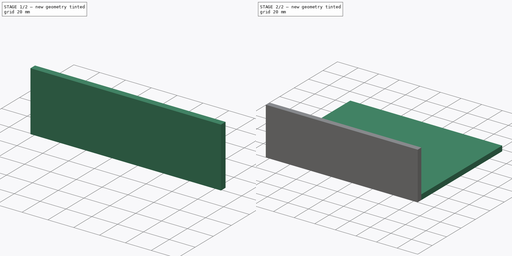
[diagram: build sequence overview — one tinted view per stage of 2, left to right]
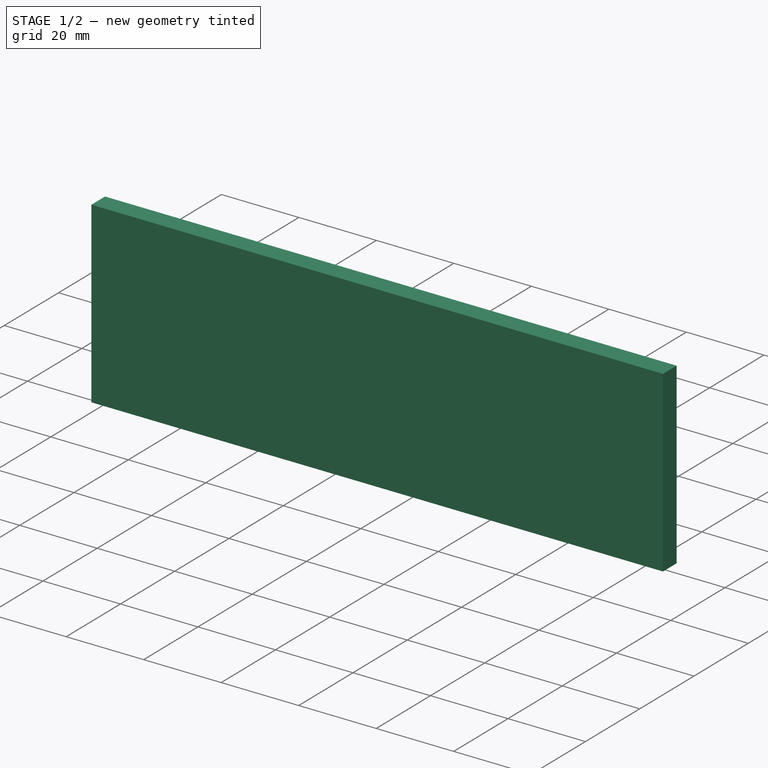
[diagram: stage 1 of 2 — iso view after this stage's code; geometry added in this stage tinted green]
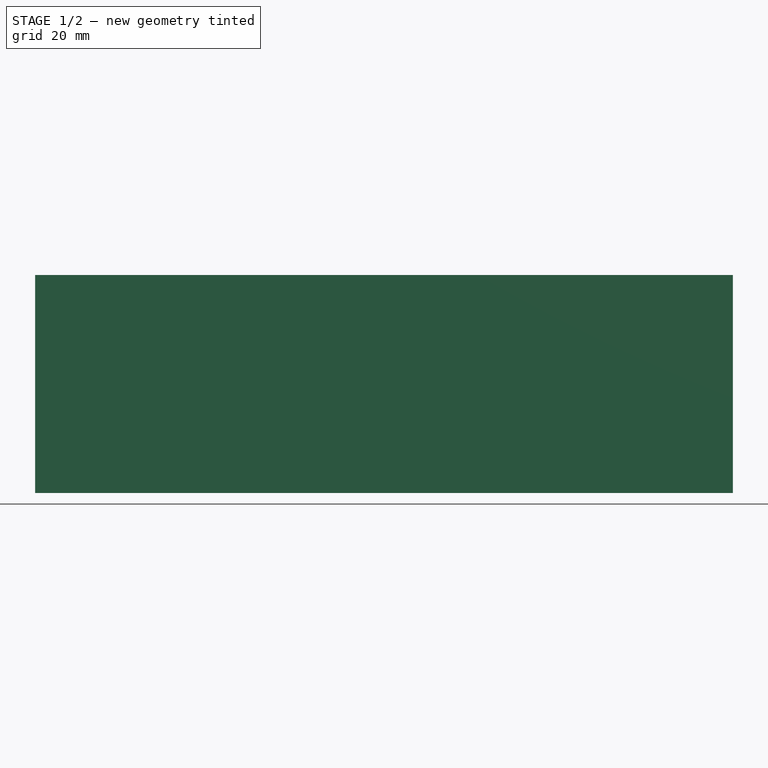
[diagram: stage 1 of 2 — front view after this stage's code; geometry added in this stage tinted green]
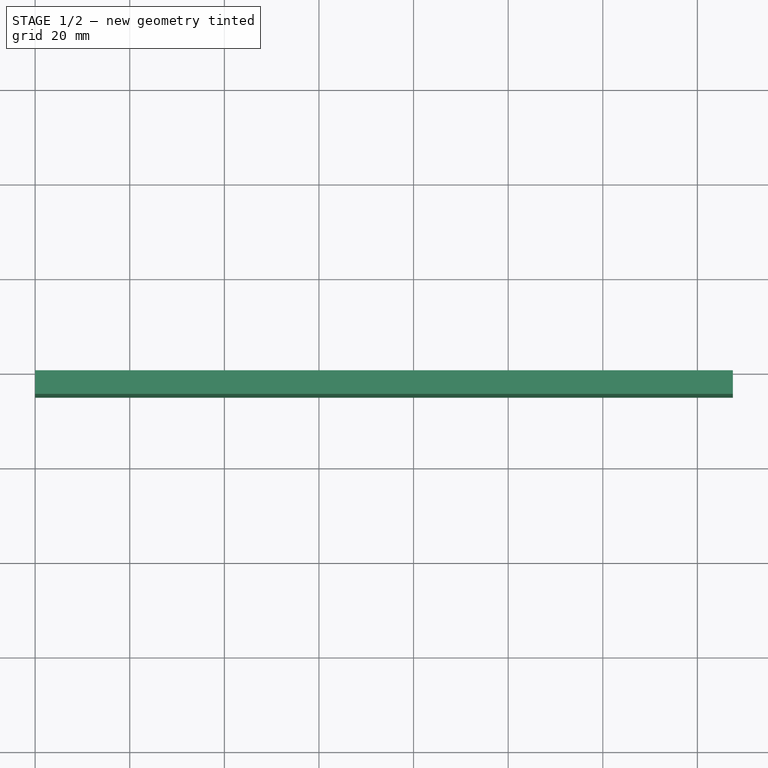
[diagram: stage 1 of 2 — top view after this stage's code; geometry added in this stage tinted green]
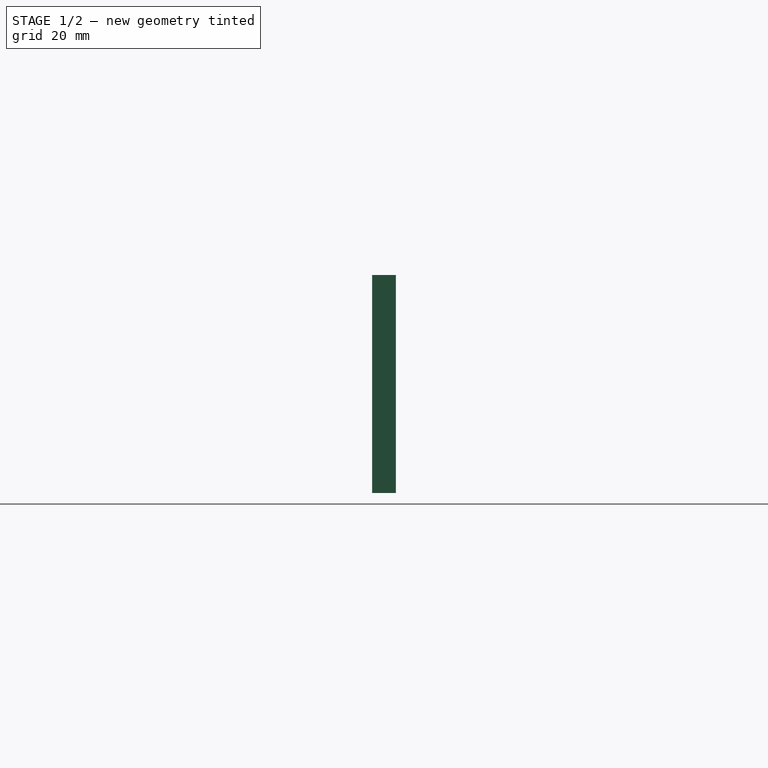
[diagram: stage 1 of 2 — right view after this stage's code; geometry added in this stage tinted green]
FCSTD DOCUMENT  (FreeCAD 0.19R)
Label: drive_caddy_1
License: All rights reserved
LicenseURL: http://en.wikipedia.org/wiki/All_rights_reserved
objects: Sketcher::SketchObject×2, PartDesign::Pad×2, PartDesign::Body×2, Spreadsheet::Sheet×1
note: 8 computed .brp shape members not serialized (recipe doc carries the construction recipe); baked Part::Feature solids carry a one-line shape summary decoded from their .brp

FEATURE [PartDesign::Body] Body  label="base_plate"
  Group = -> [Sketch,Pad]
  Origin = -> Origin
  Tip = -> Pad
FEATURE [Sketcher::SketchObject] Sketch001  label="side_plate_footprint"
  FullyConstrained = true
  MapMode = 5
  Support = -> [XY_Plane001]
  expr: Constraints[9] = Spreadsheet.side_plate_x
  expr: Constraints[10] = Spreadsheet.side_plate_y
  sketch-geometry (4):
    g0: LineSegment StartX=0 StartY=0 StartZ=0 EndX=147.5 EndY=0 EndZ=0
    g1: LineSegment StartX=147.5 StartY=0 StartZ=0 EndX=147.5 EndY=-5 EndZ=0
    g2: LineSegment StartX=147.5 StartY=-5 StartZ=0 EndX=0 EndY=-5 EndZ=0
    g3: LineSegment StartX=0 StartY=-5 StartZ=0 EndX=0 EndY=0 EndZ=0
  constraints (11):
    c: Coincident(g0,g1)
    c: Coincident(g1,g2)
    c: Coincident(g2,g3)
    c: Coincident(g3,g0)
    c: Horizontal(g0)
    c: Horizontal(g2)
    c: Vertical(g1)
    c: Vertical(g3)
    c: Coincident(g0,g-1)
    c: DistanceX(g2,g2) = 147.5
    c: DistanceY(g3,g3) = 5
FEATURE [PartDesign::Pad] Pad001  label="side_panel_pad1"
  Direction = (1,1,1)
  Length = 46.1
  Length2 = 100
  Profile = -> Sketch001
  Type = 0
  expr: Length = Spreadsheet.side_plate_z
FEATURE [PartDesign::Body] Body001  label="side_plate1"
  Group = -> [Sketch001,Pad001]
  Origin = -> Origin001
  Tip = -> Pad001
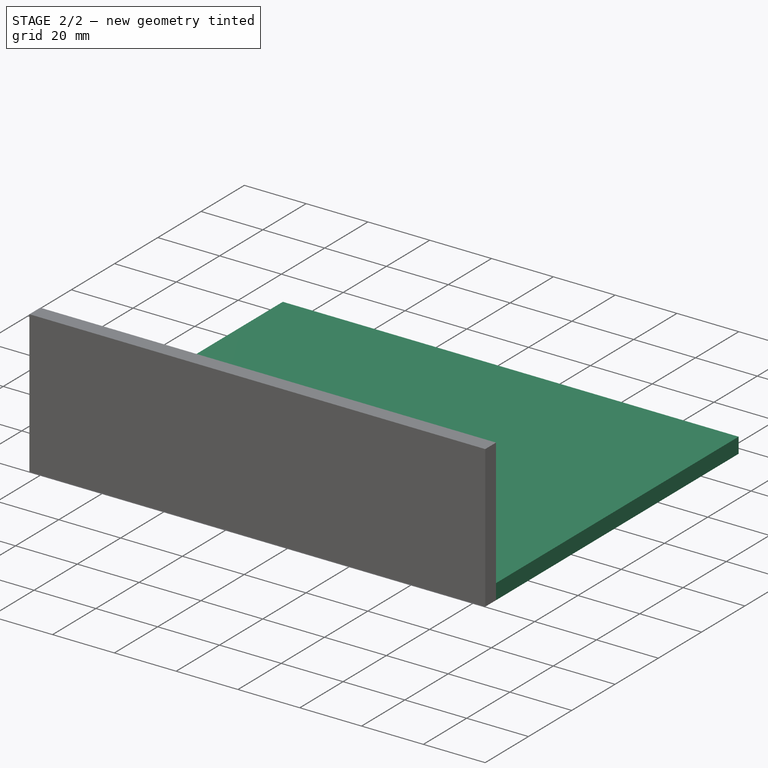
[diagram: stage 2 of 2 — iso view after this stage's code; geometry added in this stage tinted green]
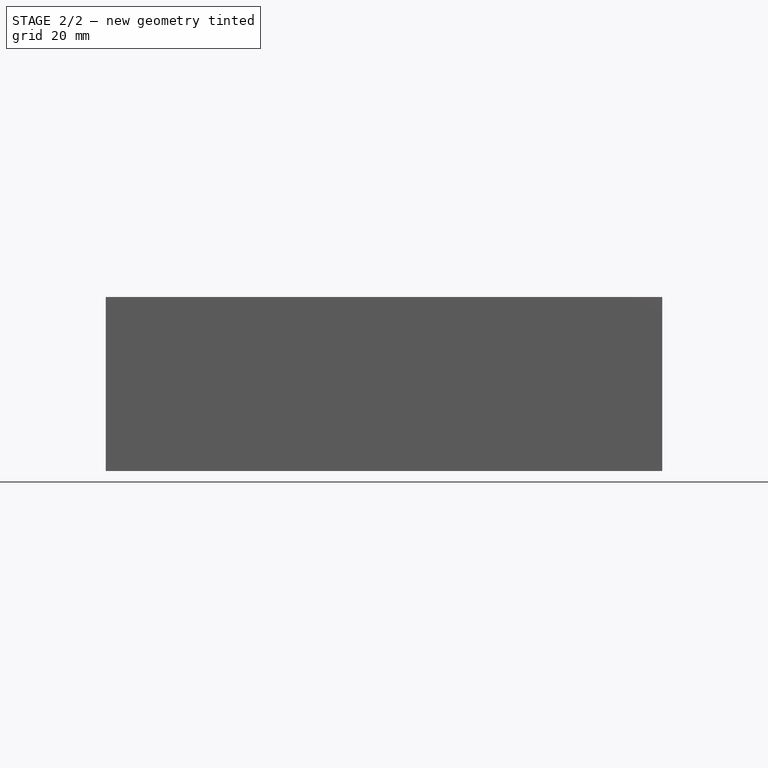
[diagram: stage 2 of 2 — front view after this stage's code; geometry added in this stage tinted green]
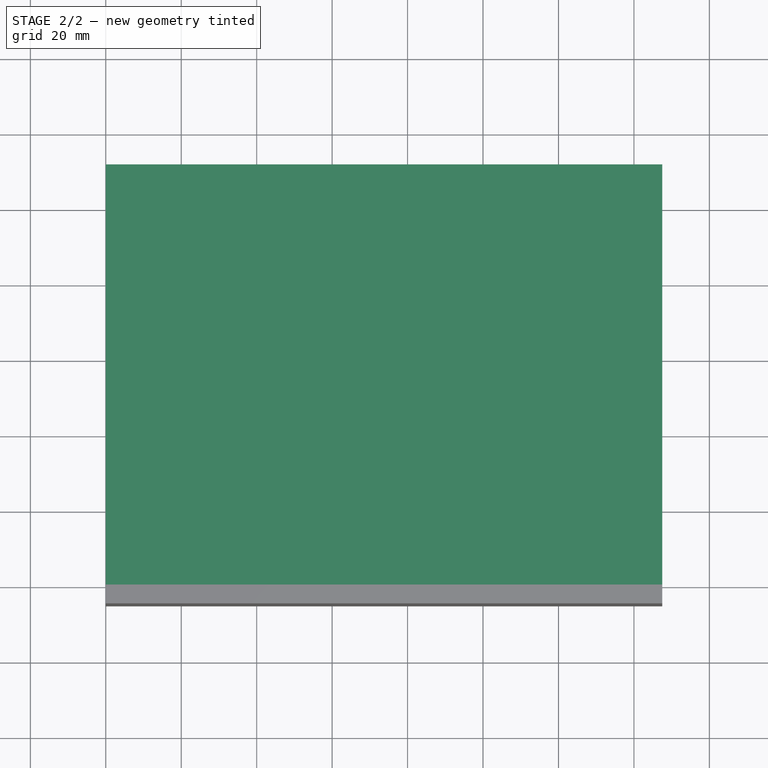
[diagram: stage 2 of 2 — top view after this stage's code; geometry added in this stage tinted green]
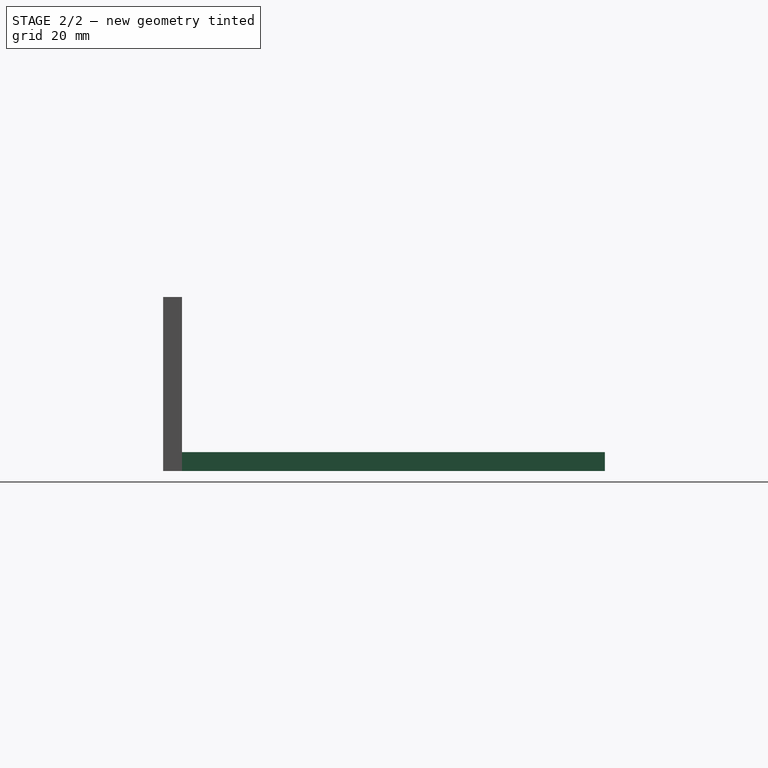
[diagram: stage 2 of 2 — right view after this stage's code; geometry added in this stage tinted green]
FEATURE [Spreadsheet::Sheet] Spreadsheet
  cells = A1=2.5" drives; B1=standard values; D1=user settings; G1=calculated values, do not change; A2=drive1x; B2(drive1x)=100.35; D2=drive_type; E2(drive_type)=2; F2=1 for 2.5" drives, 2 for 3.5"; G2=drivex; H2(drivex)==drive_type == 1 ? drive1x : drive2x; A3=drive1y; B3(drive1y)=69.84999999999999; D3=drive_count; E3(drive_count)=2; F3=number of drives; G3=drivey; H3(drivey)==drive_type == 1 ? drive1y : drive2y; A4=drive1z; B4(drive1z)=12; G4=drivez; H4(drivez)==drive_type == 1 ? drive1z : drive2z; A5=drive1_screw1_z_offset; B5(drive1_screw1_z_offset)=3; D5=panels_thickness; E5(panels_thickness)=5; G5=drive_screw1_z_offset; H5(drive_screw1_z_offset)==drive_type == 1 ? drive1_screw1_z_offset : drive2_screw1_z_offset; A6=drive1_screw1_x_offset; B6(drive1_screw1_x_offset)=14; D6=panels_screws_radius; E6(panels_screws_radius)=2; G6=drive_screw1_x_offset; H6(drive_screw1_x_offset)==drive_type == 1 ? drive1_screw1_x_offset : drive2_screw1_x_offset; A7=drive1_screw2_x_offset; B7(drive1_screw2_x_offset)=90; G7=drive_screw2_x_offset; H7(drive_screw2_x_offset)==drive_type == 1 ? drive1_screw2_x_offset : drive2_screw2_x_offset; D8=padding; E8(padding)=0.25; A9=3.5" drives; D9=spacers_thickness; E9(spacers_thickness)==panels_thickness; F9=spacers between drives; G9=base_plate_x; H9(base_plate_x)==drivex + padding * 2; A10=drive2x; B10(drive2x)=147; D10=spacers_screws_radius; E10(spacers_screws_radius)==panels_screws_radius; G10=base_plate_y; H10(base_plate_y)==panels_thickness * 2 + drivey + padding * 2; A11=drive2y; B11(drive2y)=101.6; D11=panels_screws_dist_x; E11(panels_screws_dist_x)=10; G11=base_plate_z; H11(base_plate_z)==panels_thickness; A12=drive2z; B12(drive2z)=17.8; A13=drive2_screw1_z_offset; B13(drive2_screw1_z_offset)=6.35; G13=side_plate_x; H13(side_plate_x)==base_plate_x; A14=drive2_screw1_x_offset; B14(drive2_screw1_x_offset)=28.5; G14=side_plate_y; H14(side_plate_y)==panels_thickness; A15=drive2_screw2_x_offset; B15(drive2_screw2_x_offset)=101.6; G15=side_plate_z; H15(side_plate_z)==(drivez + panels_thickness + padding) * drive_count; G17=drives_z0; H17(drives_z0)==base_plate_z + padding; G18=drives_z_spacing; H18(drives_z_spacing)==drivez + padding + spacers_thickness
FEATURE [Sketcher::SketchObject] Sketch  label="baseplate_sk"
  FullyConstrained = true
  expr: Constraints[9] = Spreadsheet.base_plate_x
  expr: Constraints[10] = Spreadsheet.base_plate_y
  sketch-geometry (4):
    g0: LineSegment StartX=0 StartY=0 StartZ=0 EndX=147.5 EndY=0 EndZ=0
    g1: LineSegment StartX=147.5 StartY=0 StartZ=0 EndX=147.5 EndY=112.1 EndZ=0
    g2: LineSegment StartX=147.5 StartY=112.1 StartZ=0 EndX=0 EndY=112.1 EndZ=0
    g3: LineSegment StartX=0 StartY=112.1 StartZ=0 EndX=0 EndY=0 EndZ=0
  constraints (11):
    c: Coincident(g0,g1)
    c: Coincident(g1,g2)
    c: Coincident(g2,g3)
    c: Coincident(g3,g0)
    c: Horizontal(g0)
    c: Horizontal(g2)
    c: Vertical(g1)
    c: Vertical(g3)
    c: Coincident(g0,g-1)
    c: DistanceX(g0,g0) = 147.5
    c: DistanceY(g3,g3) = 112.1
FEATURE [PartDesign::Pad] Pad  label="baseplatePad"
  Direction = (1,1,1)
  Length = 5
  Length2 = 100
  Profile = -> Sketch
  Type = 0
  expr: Length = Spreadsheet.base_plate_z
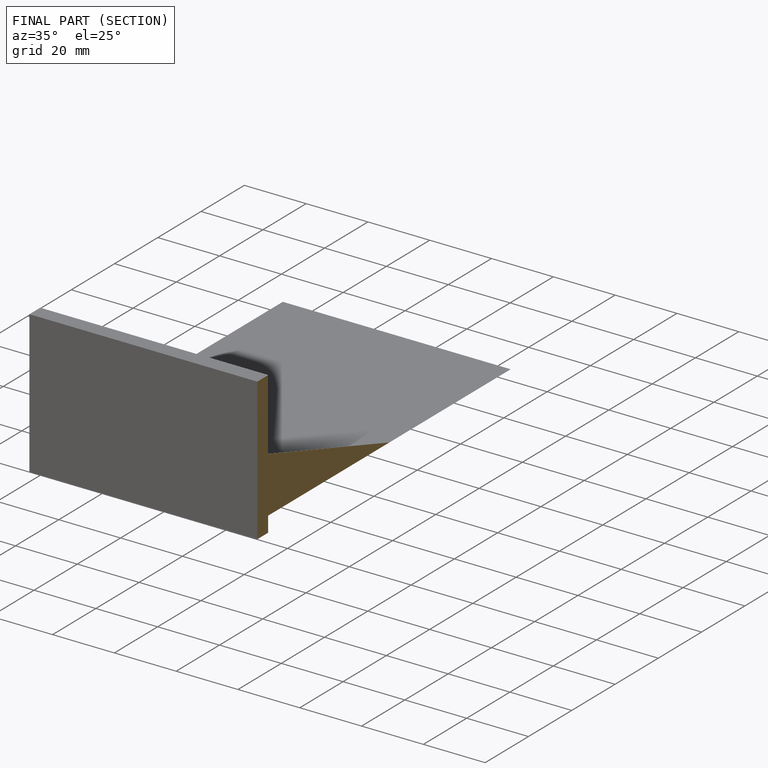
[diagram: finished part — half-section view (interior)]
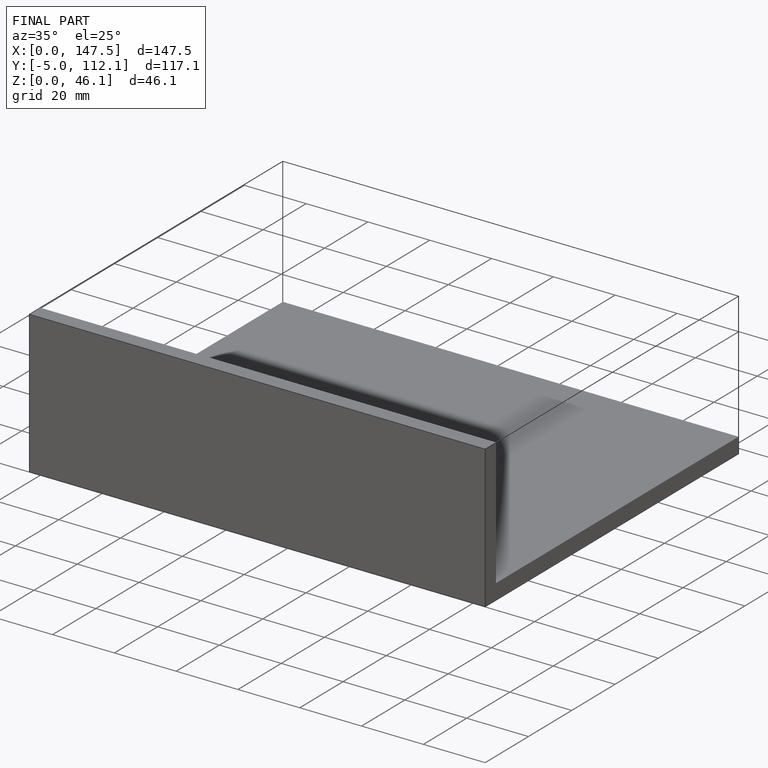
[diagram: finished part — iso view with bounding-box wireframe]
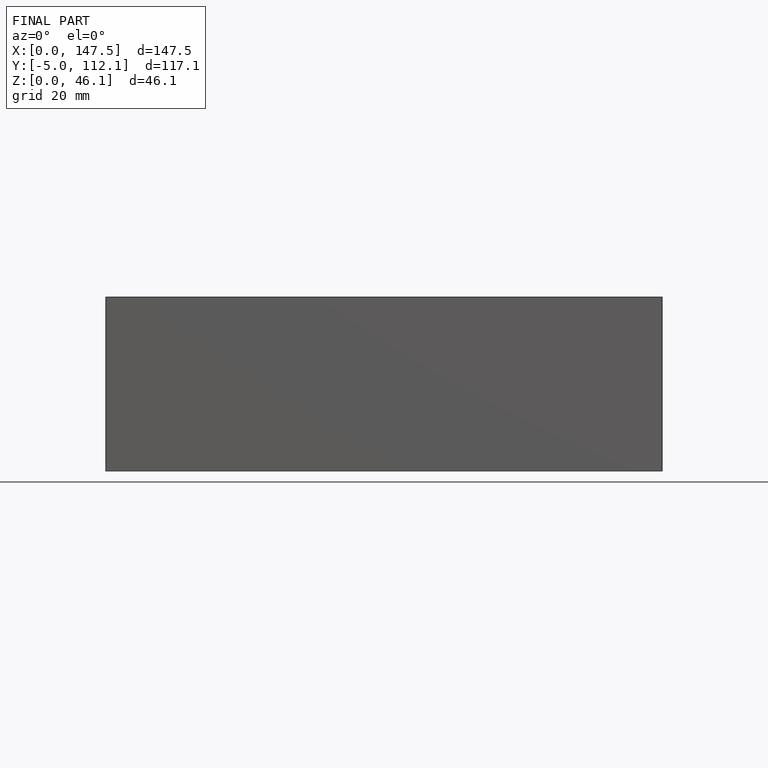
[diagram: finished part — front view with bounding-box wireframe]
